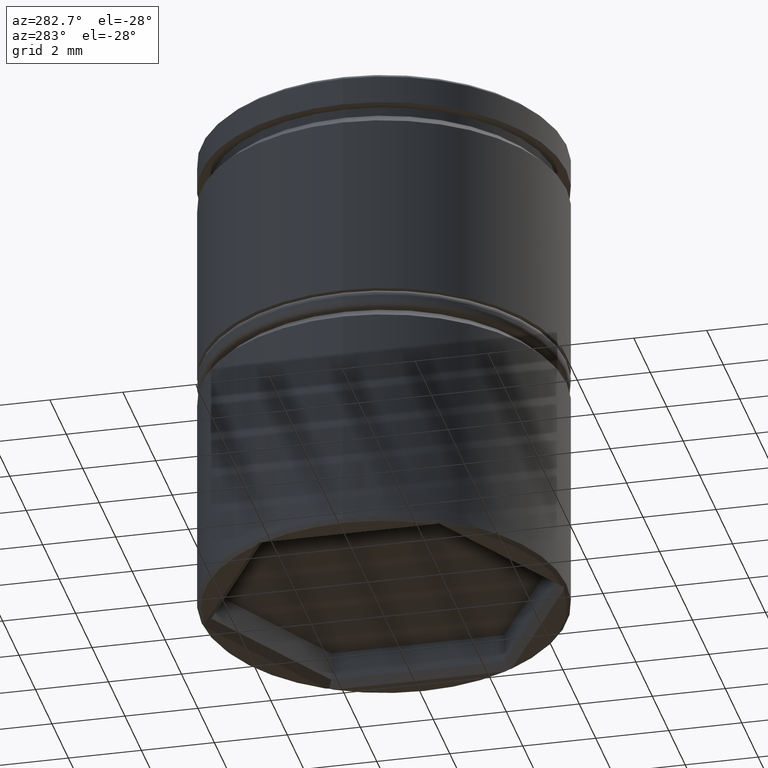
[diagram: clean part render]
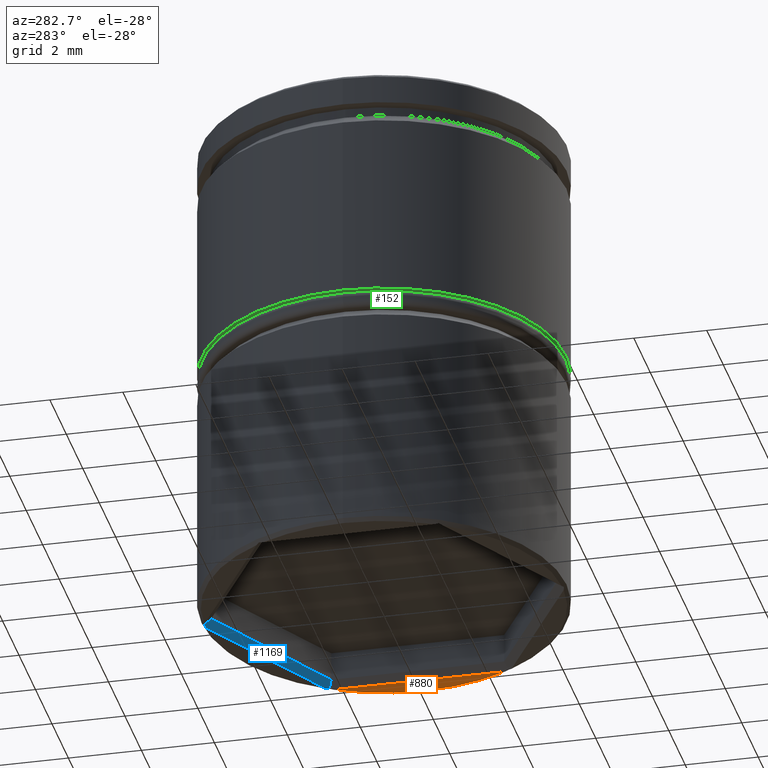
[diagram: same view with three faces highlighted in distinct colors, each labeled with its STEP entity id]
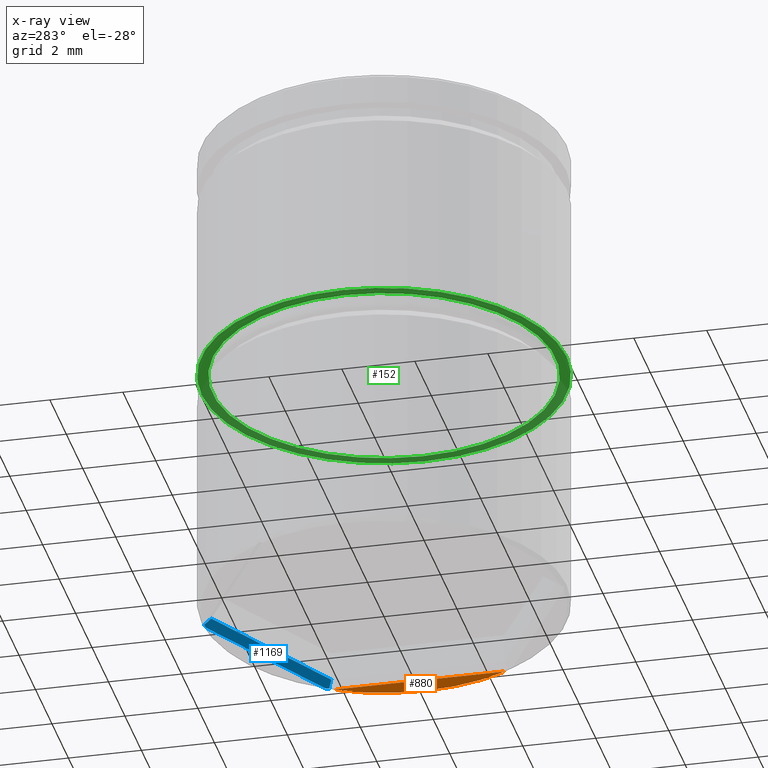
[diagram: x-ray of the same camera — body ghosted, the three highlighted faces saturated]
A machine part, auxiliary view with three faces highlighted in distinct colors.
The next image is the same camera in x-ray (body ghosted, the three faces saturated) — at least one of them is partly hidden behind the body in this view.
Their STEP definitions:

[orange] entity #880 — the highlighted planar face has unit normal (0, 0, -1).
#54 = CARTESIAN_POINT ( 'NONE',  ( 0.000000000000000000, 0.000000000000000000, -13.50000000000000000 ) ) ;
#86 = VERTEX_POINT ( 'NONE', #424 ) ;
#151 = CIRCLE ( 'NONE', #284, 4.900000000000003020 ) ;
#259 = DIRECTION ( 'NONE',  ( 0.000000000000000000, 0.000000000000000000, -1.000000000000000000 ) ) ;
#284 = AXIS2_PLACEMENT_3D ( 'NONE', #54, #259, #900 ) ;
#307 = FACE_OUTER_BOUND ( 'NONE', #982, .T. ) ;
#310 = EDGE_CURVE ( 'NONE', #1009, #86, #1134, .T. ) ;
#312 = DIRECTION ( 'NONE',  ( 0.000000000000000000, 0.000000000000000000, -1.000000000000000000 ) ) ;
#347 = AXIS2_PLACEMENT_3D ( 'NONE', #714, #1333, #1220 ) ;
#372 = VECTOR ( 'NONE', #1331, 1000.000000000000000 ) ;
#424 = CARTESIAN_POINT ( 'NONE',  ( 4.900000000000003020, 0.000000000000000000, -13.50000000000000000 ) ) ;
#451 = VERTEX_POINT ( 'NONE', #934 ) ;
#470 = LINE ( 'NONE', #686, #372 ) ;
#623 = AXIS2_PLACEMENT_3D ( 'NONE', #852, #312, #737 ) ;
#686 = CARTESIAN_POINT ( 'NONE',  ( 4.300000000000001599, 2.367136103677466963, -13.50000000000000000 ) ) ;
#714 = CARTESIAN_POINT ( 'NONE',  ( 0.000000000000000000, 0.000000000000000000, -13.50000000000000000 ) ) ;
#717 = EDGE_CURVE ( 'NONE', #86, #451, #151, .T. ) ;
#737 = DIRECTION ( 'NONE',  ( -1.000000000000000000, 0.000000000000000000, -0.000000000000000000 ) ) ;
#743 = EDGE_CURVE ( 'NONE', #451, #1009, #470, .T. ) ;
#852 = CARTESIAN_POINT ( 'NONE',  ( 0.000000000000000000, 5.000000000000000000, -13.50000000000000000 ) ) ;
#880 = ADVANCED_FACE ( 'NONE', ( #307 ), #1173, .T. ) ;
#900 = DIRECTION ( 'NONE',  ( -1.000000000000000000, 0.000000000000000000, 0.000000000000000000 ) ) ;
#931 = ORIENTED_EDGE ( 'NONE', *, *, #310, .T. ) ;
#934 = CARTESIAN_POINT ( 'NONE',  ( 4.300000000000001599, -2.349468024894150187, -13.50000000000000000 ) ) ;
#982 = EDGE_LOOP ( 'NONE', ( #931, #1338, #1032 ) ) ;
#987 = CARTESIAN_POINT ( 'NONE',  ( 4.300000000000001599, 2.349468024894150187, -13.50000000000000000 ) ) ;
#1009 = VERTEX_POINT ( 'NONE', #987 ) ;
#1032 = ORIENTED_EDGE ( 'NONE', *, *, #743, .T. ) ;
#1134 = CIRCLE ( 'NONE', #347, 4.900000000000003020 ) ;
#1173 = PLANE ( 'NONE',  #623 ) ;
#1220 = DIRECTION ( 'NONE',  ( -1.000000000000000000, 0.000000000000000000, 0.000000000000000000 ) ) ;
#1331 = DIRECTION ( 'NONE',  ( -0.000000000000000000, 1.000000000000000000, 0.000000000000000000 ) ) ;
#1333 = DIRECTION ( 'NONE',  ( 0.000000000000000000, 0.000000000000000000, -1.000000000000000000 ) ) ;
#1338 = ORIENTED_EDGE ( 'NONE', *, *, #717, .T. ) ;

[blue] entity #1169 — the highlighted planar face has unit normal (-0.3536, -0.6124, -0.7071).
#3 = CARTESIAN_POINT ( 'NONE',  ( 4.184698994937585681, 2.549175223826012360, -13.50000000000000000 ) ) ;
#36 = EDGE_CURVE ( 'NONE', #380, #998, #722, .T. ) ;
#75 = LINE ( 'NONE', #408, #465 ) ;
#83 = DIRECTION ( 'NONE',  ( -0.8660254037844385966, 0.5000000000000001110, 0.000000000000000000 ) ) ;
#89 = EDGE_CURVE ( 'NONE', #736, #177, #1064, .T. ) ;
#111 = VERTEX_POINT ( 'NONE', #849 ) ;
#128 = AXIS2_PLACEMENT_3D ( 'NONE', #1039, #1015, #83 ) ;
#139 = EDGE_CURVE ( 'NONE', #344, #380, #222, .T. ) ;
#176 = LINE ( 'NONE', #703, #859 ) ;
#177 = VERTEX_POINT ( 'NONE', #1087 ) ;
#222 = LINE ( 'NONE', #1273, #1153 ) ;
#315 = DIRECTION ( 'NONE',  ( -0.8660254037844385966, 0.5000000000000002220, 0.000000000000000000 ) ) ;
#335 = CARTESIAN_POINT ( 'NONE',  ( 4.269734859267344973, 2.465132570366329823, -13.46973485926734249 ) ) ;
#342 = CARTESIAN_POINT ( 'NONE',  ( 4.213247191338550302, 2.521291069032199239, -13.49012571178598208 ) ) ;
#344 = VERTEX_POINT ( 'NONE', #911 ) ;
#359 = CARTESIAN_POINT ( 'NONE',  ( -3.274352596443133831E-16, 4.930265140732660534, -13.46973485926734249 ) ) ;
#364 = ORIENTED_EDGE ( 'NONE', *, *, #36, .F. ) ;
#380 = VERTEX_POINT ( 'NONE', #397 ) ;
#385 = DIRECTION ( 'NONE',  ( 0.8660254037844385966, -0.5000000000000001110, 0.000000000000000000 ) ) ;
#396 = VECTOR ( 'NONE', #650, 1000.000000000000114 ) ;
#397 = CARTESIAN_POINT ( 'NONE',  ( 0.1153010050624178467, 4.898643248720162546, -13.50000000000000000 ) ) ;
#408 = CARTESIAN_POINT ( 'NONE',  ( 0.000000000000000000, 4.734272207354934814, -13.30000000000000071 ) ) ;
#438 = ORIENTED_EDGE ( 'NONE', *, *, #139, .F. ) ;
#465 = VECTOR ( 'NONE', #928, 1000.000000000000114 ) ;
#563 = EDGE_CURVE ( 'NONE', #177, #344, #1145, .T. ) ;
#593 = CARTESIAN_POINT ( 'NONE',  ( 4.100000000000003197, 2.367136103677466963, -13.30000000000000071 ) ) ;
#613 = CARTESIAN_POINT ( 'NONE',  ( 0.07687852044743631597, 4.909424634638720697, -13.49012571178598208 ) ) ;
#619 = PLANE ( 'NONE',  #128 ) ;
#650 = DIRECTION ( 'NONE',  ( 0.6546536707079775308, 0.3779644730092256988, -0.6546536707079775308 ) ) ;
#702 = CARTESIAN_POINT ( 'NONE',  ( 0.03844244460728216822, 4.919964518745060467, -13.48003548125494255 ) ) ;
#703 = CARTESIAN_POINT ( 'NONE',  ( 4.100000000000003197, 2.367136103677466963, -13.30000000000000071 ) ) ;
#716 = FACE_OUTER_BOUND ( 'NONE', #1367, .T. ) ;
#722 = B_SPLINE_CURVE_WITH_KNOTS ( 'NONE', 3,
 ( #826, #613, #702, #926 ),
 .UNSPECIFIED., .F., .F.,
 ( 4, 4 ),
 ( 1.897353801849632760E-19, 0.0001233298202642871960 ),
 .UNSPECIFIED. ) ;
#736 = VERTEX_POINT ( 'NONE', #593 ) ;
#762 = CARTESIAN_POINT ( 'NONE',  ( 4.241593036647661741, 2.493274392986012167, -13.48003548125494255 ) ) ;
#826 = CARTESIAN_POINT ( 'NONE',  ( 0.1153010050624178467, 4.898643248720162546, -13.50000000000000000 ) ) ;
#849 = CARTESIAN_POINT ( 'NONE',  ( 0.000000000000000000, 4.734272207354934814, -13.30000000000000071 ) ) ;
#859 = VECTOR ( 'NONE', #385, 1000.000000000000000 ) ;
#911 = CARTESIAN_POINT ( 'NONE',  ( 4.184698994937585681, 2.549175223826012360, -13.50000000000000000 ) ) ;
#926 = CARTESIAN_POINT ( 'NONE',  ( -3.274352596443133831E-16, 4.930265140732660534, -13.46973485926734249 ) ) ;
#928 = DIRECTION ( 'NONE',  ( -2.715271065157117277E-15, 0.7559289460184545062, -0.6546536707079769757 ) ) ;
#998 = VERTEX_POINT ( 'NONE', #359 ) ;
#1015 = DIRECTION ( 'NONE',  ( -0.3535533905932742305, -0.6123724356957952475, -0.7071067811865467956 ) ) ;
#1039 = CARTESIAN_POINT ( 'NONE',  ( 0.000000000000000000, 4.734272207354934814, -13.30000000000000071 ) ) ;
#1048 = ORIENTED_EDGE ( 'NONE', *, *, #1160, .T. ) ;
#1053 = ORIENTED_EDGE ( 'NONE', *, *, #89, .F. ) ;
#1064 = LINE ( 'NONE', #1078, #396 ) ;
#1078 = CARTESIAN_POINT ( 'NONE',  ( 4.100000000000003197, 2.367136103677466963, -13.30000000000000071 ) ) ;
#1079 = EDGE_CURVE ( 'NONE', #111, #736, #176, .T. ) ;
#1087 = CARTESIAN_POINT ( 'NONE',  ( 4.269734859267344973, 2.465132570366329823, -13.46973485926734249 ) ) ;
#1145 = B_SPLINE_CURVE_WITH_KNOTS ( 'NONE', 3,
 ( #335, #762, #342, #3 ),
 .UNSPECIFIED., .F., .F.,
 ( 4, 4 ),
 ( 0.000000000000000000, 0.0001233298202642852987 ),
 .UNSPECIFIED. ) ;
#1153 = VECTOR ( 'NONE', #315, 999.9999999999998863 ) ;
#1160 = EDGE_CURVE ( 'NONE', #111, #998, #75, .T. ) ;
#1169 = ADVANCED_FACE ( 'NONE', ( #716 ), #619, .T. ) ;
#1216 = ORIENTED_EDGE ( 'NONE', *, *, #1079, .F. ) ;
#1269 = ORIENTED_EDGE ( 'NONE', *, *, #563, .F. ) ;
#1273 = CARTESIAN_POINT ( 'NONE',  ( 0.09999999999999924227, 4.907477288111821601, -13.50000000000000000 ) ) ;
#1367 = EDGE_LOOP ( 'NONE', ( #438, #1269, #1053, #1216, #1048, #364 ) ) ;

[green] entity #152 — the highlighted planar face has unit normal (0, 0, -1).
#13 = CIRCLE ( 'NONE', #1372, 4.700000000000000178 ) ;
#15 = CARTESIAN_POINT ( 'NONE',  ( 0.000000000000000000, 5.000000000000000000, -6.499999999999999112 ) ) ;
#59 = CIRCLE ( 'NONE', #885, 5.000000000000000000 ) ;
#78 = DIRECTION ( 'NONE',  ( 1.000000000000000000, 0.000000000000000000, 0.000000000000000000 ) ) ;
#152 = ADVANCED_FACE ( 'NONE', ( #1266, #1171 ), #338, .T. ) ;
#158 = CARTESIAN_POINT ( 'NONE',  ( 0.000000000000000000, 0.000000000000000000, -6.499999999999999112 ) ) ;
#171 = CARTESIAN_POINT ( 'NONE',  ( 5.000000000000000000, 0.000000000000000000, -6.499999999999999112 ) ) ;
#242 = AXIS2_PLACEMENT_3D ( 'NONE', #1252, #796, #78 ) ;
#270 = ORIENTED_EDGE ( 'NONE', *, *, #853, .F. ) ;
#298 = VERTEX_POINT ( 'NONE', #171 ) ;
#302 = CIRCLE ( 'NONE', #1060, 5.000000000000000000 ) ;
#311 = ORIENTED_EDGE ( 'NONE', *, *, #1184, .T. ) ;
#317 = DIRECTION ( 'NONE',  ( -0.000000000000000000, -0.000000000000000000, 1.000000000000000000 ) ) ;
#322 = EDGE_LOOP ( 'NONE', ( #1066, #311 ) ) ;
#338 = PLANE ( 'NONE',  #1197 ) ;
#353 = EDGE_CURVE ( 'NONE', #1097, #298, #302, .T. ) ;
#363 = DIRECTION ( 'NONE',  ( -0.000000000000000000, -0.000000000000000000, 1.000000000000000000 ) ) ;
#381 = DIRECTION ( 'NONE',  ( 1.000000000000000000, 0.000000000000000000, 0.000000000000000000 ) ) ;
#453 = ORIENTED_EDGE ( 'NONE', *, *, #353, .F. ) ;
#459 = VERTEX_POINT ( 'NONE', #1256 ) ;
#460 = CARTESIAN_POINT ( 'NONE',  ( 4.700000000000000178, 0.000000000000000000, -6.499999999999999112 ) ) ;
#546 = DIRECTION ( 'NONE',  ( 1.000000000000000000, 0.000000000000000000, 0.000000000000000000 ) ) ;
#729 = CIRCLE ( 'NONE', #242, 4.700000000000000178 ) ;
#733 = CARTESIAN_POINT ( 'NONE',  ( 0.000000000000000000, 0.000000000000000000, -6.499999999999999112 ) ) ;
#774 = EDGE_LOOP ( 'NONE', ( #270, #453 ) ) ;
#796 = DIRECTION ( 'NONE',  ( -0.000000000000000000, -0.000000000000000000, 1.000000000000000000 ) ) ;
#798 = DIRECTION ( 'NONE',  ( -0.000000000000000000, -0.000000000000000000, 1.000000000000000000 ) ) ;
#827 = DIRECTION ( 'NONE',  ( 1.000000000000000000, 0.000000000000000000, 0.000000000000000000 ) ) ;
#853 = EDGE_CURVE ( 'NONE', #298, #1097, #59, .T. ) ;
#868 = DIRECTION ( 'NONE',  ( -1.000000000000000000, 0.000000000000000000, -0.000000000000000000 ) ) ;
#885 = AXIS2_PLACEMENT_3D ( 'NONE', #733, #317, #546 ) ;
#936 = CARTESIAN_POINT ( 'NONE',  ( 0.000000000000000000, 0.000000000000000000, -6.499999999999999112 ) ) ;
#1037 = VERTEX_POINT ( 'NONE', #460 ) ;
#1060 = AXIS2_PLACEMENT_3D ( 'NONE', #158, #363, #381 ) ;
#1066 = ORIENTED_EDGE ( 'NONE', *, *, #1385, .T. ) ;
#1070 = DIRECTION ( 'NONE',  ( 0.000000000000000000, 0.000000000000000000, -1.000000000000000000 ) ) ;
#1097 = VERTEX_POINT ( 'NONE', #1231 ) ;
#1171 = FACE_OUTER_BOUND ( 'NONE', #774, .T. ) ;
#1184 = EDGE_CURVE ( 'NONE', #459, #1037, #13, .T. ) ;
#1197 = AXIS2_PLACEMENT_3D ( 'NONE', #15, #1070, #868 ) ;
#1231 = CARTESIAN_POINT ( 'NONE',  ( -5.000000000000000000, 6.123233995736766282E-16, -6.499999999999999112 ) ) ;
#1252 = CARTESIAN_POINT ( 'NONE',  ( 0.000000000000000000, 0.000000000000000000, -6.499999999999999112 ) ) ;
#1256 = CARTESIAN_POINT ( 'NONE',  ( -4.700000000000000178, 5.755839955992559655E-16, -6.499999999999999112 ) ) ;
#1266 = FACE_BOUND ( 'NONE', #322, .T. ) ;
#1372 = AXIS2_PLACEMENT_3D ( 'NONE', #936, #798, #827 ) ;
#1385 = EDGE_CURVE ( 'NONE', #1037, #459, #729, .T. ) ;